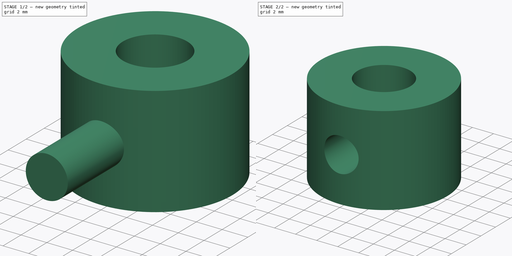
[diagram: build sequence overview — one tinted view per stage of 2, left to right]
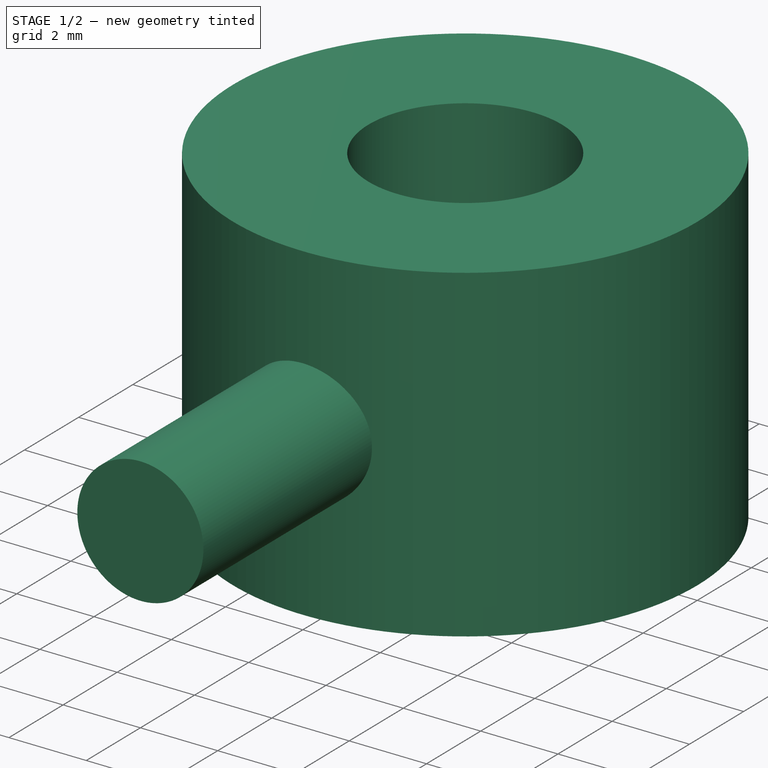
[diagram: stage 1 of 2 — iso view after this stage's code; geometry added in this stage tinted green]
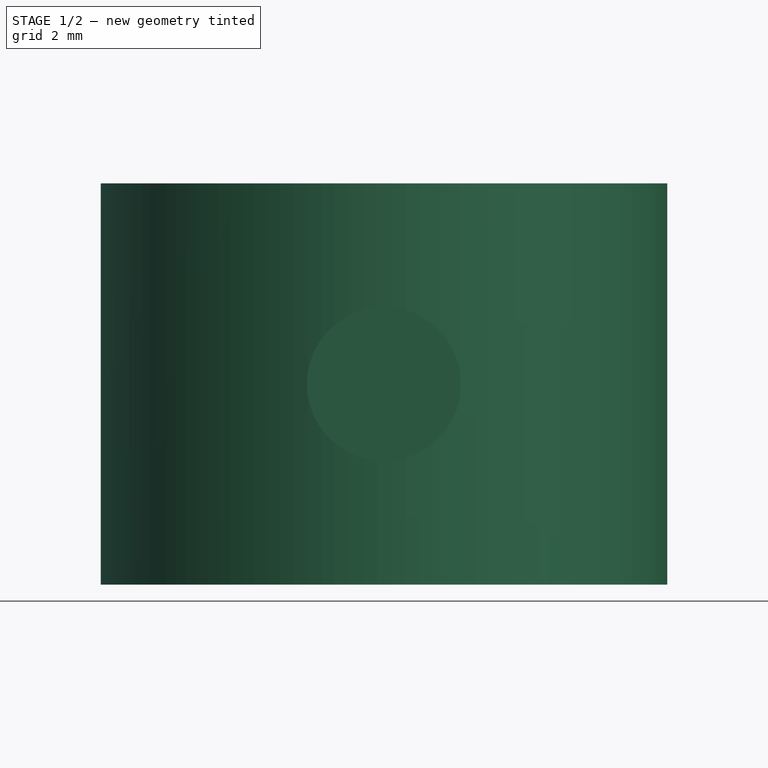
[diagram: stage 1 of 2 — front view after this stage's code; geometry added in this stage tinted green]
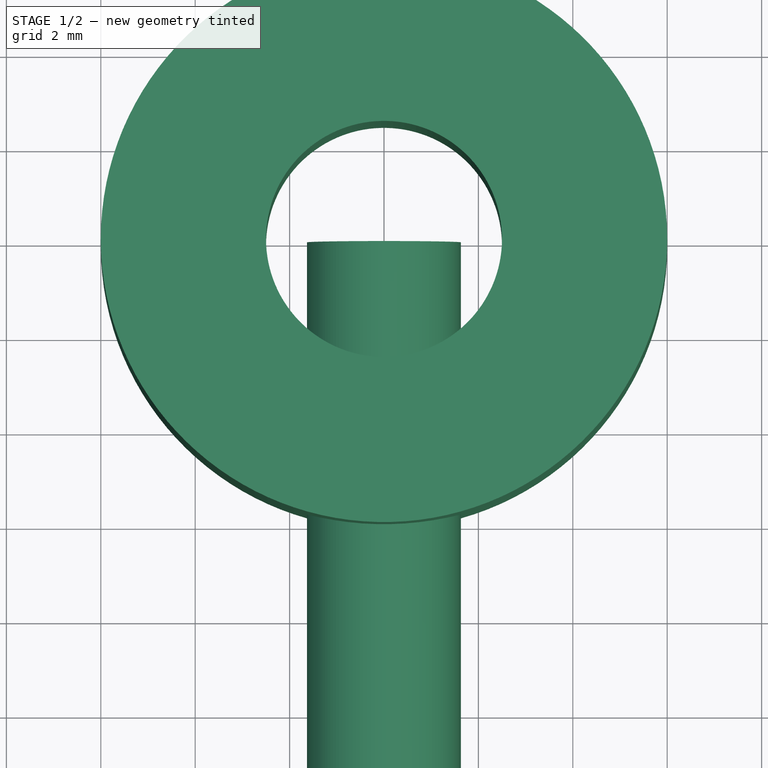
[diagram: stage 1 of 2 — top view after this stage's code; geometry added in this stage tinted green]
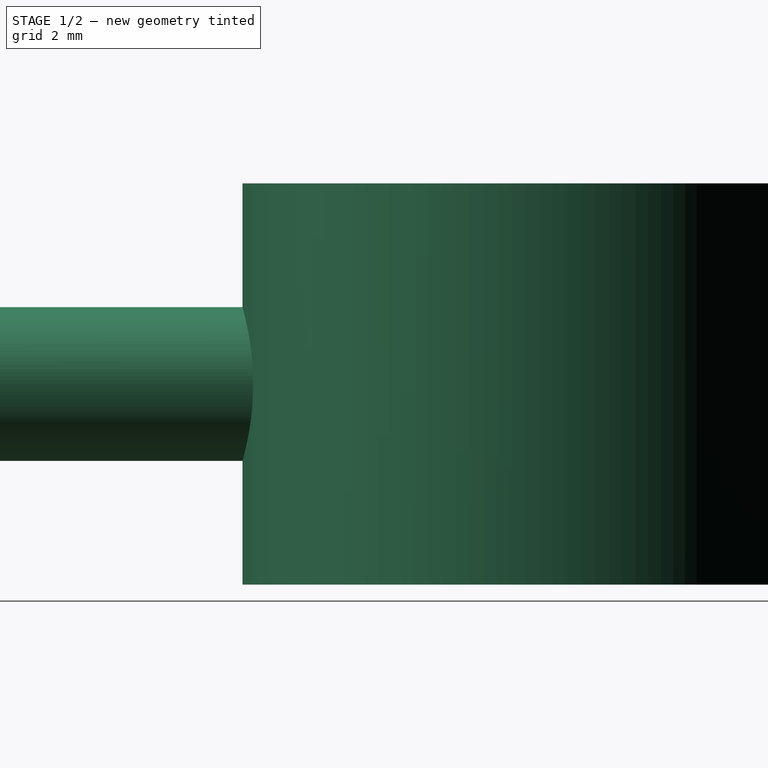
[diagram: stage 1 of 2 — right view after this stage's code; geometry added in this stage tinted green]
FCSTD DOCUMENT  (FreeCAD 0.22R38467 (Git))
Label: Bush
objects: Sketcher::SketchObject×2, Part::Extrusion×2, PartDesign::CoordinateSystem×1, App::VarSet×1, Part::Cut×1, PartDesign::Line×1, App::Part×1
note: 9 computed .brp shape members not serialized (recipe doc carries the construction recipe); baked Part::Feature solids carry a one-line shape summary decoded from their .brp

FEATURE [PartDesign::CoordinateSystem] LCS_Origin
  AttacherType = Attacher::AttachEngine3D
  AttachmentOffset = pos=(0,0,4.25) rot=(0,0,1;0rad)
  AttachmentSupport = -> [X_Axis]
  MapMode = 2
  Placement = pos=(0,0,4.25) rot=(0,0,1;0rad)
  expr: .AttachmentOffset.Base.z = VarSet.Thickness / 2
FEATURE [Sketcher::SketchObject] Sketch  label="Top Profile"
  ArcFitTolerance = 1e-06
  FullyConstrained = true
  MakeInternals = false
  expr: Constraints[2] = VarSet.Base_OD
  expr: Constraints[3] = VarSet.Base_ID
  sketch-geometry (2):
    g0: Circle CenterX=0 CenterY=0 CenterZ=0 NormalX=0 NormalY=0 NormalZ=1 AngleXU=0 Radius=2.5
    g1: Circle CenterX=0 CenterY=0 CenterZ=0 NormalX=0 NormalY=0 NormalZ=1 AngleXU=0 Radius=6
  constraints (4):
    c: Coincident(g0,g-1)
    c: Coincident(g1,g0)
    c: Diameter(g1) = 12
    c: Diameter(g0) = 5
FEATURE [App::VarSet] VarSet
  Base_GrubDia = 3.26
  Base_ID = 5
  Base_OD = 12
  Thickness = 8.5
FEATURE [Part::Extrusion] Extrude  label="Pad"
  Base = -> Sketch
  Dir = (0,0,1)
  DirMode = 2
  FaceMakerClass = Part::FaceMakerBullseye
  FaceMakerMode = 3
  LengthFwd = 8.5
  LengthRev = 0
  Solid = true
  Symmetric = true
  expr: LengthFwd = VarSet.Thickness
FEATURE [Sketcher::SketchObject] Sketch001  label="Grubscrew Profile"
  ArcFitTolerance = 1e-06
  FullyConstrained = true
  MakeInternals = false
  Placement = pos=(0,0,0) rot=(1,0,0;1.5708rad)
  expr: Constraints[1] = VarSet.Base_GrubDia
  sketch-geometry (1):
    g0: Circle CenterX=0 CenterY=0 CenterZ=0 NormalX=0 NormalY=0 NormalZ=1 AngleXU=0 Radius=1.63
  constraints (2):
    c: Coincident(g0,g-1)
    c: Diameter(g0) = 3.26
FEATURE [Part::Extrusion] Extrude001  label="Grubscrew Hole"
  Base = -> Sketch001
  Dir = (0,-1,2e-16)
  DirMode = 2
  FaceMakerClass = Part::FaceMakerBullseye
  FaceMakerMode = 3
  LengthFwd = 12
  LengthRev = 0
  Solid = true
  Symmetric = false
  expr: LengthFwd = VarSet.Base_OD
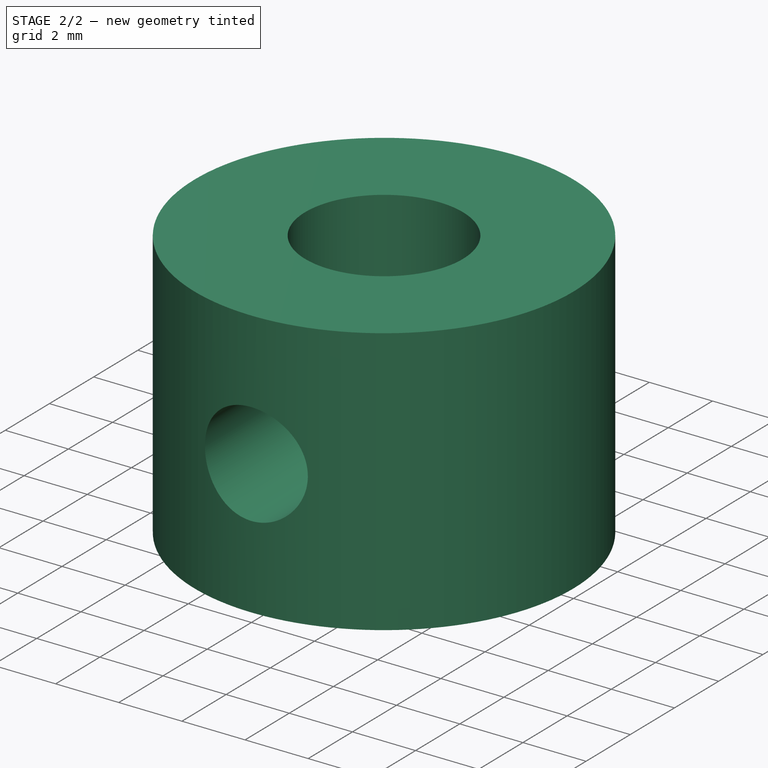
[diagram: stage 2 of 2 — iso view after this stage's code; geometry added in this stage tinted green]
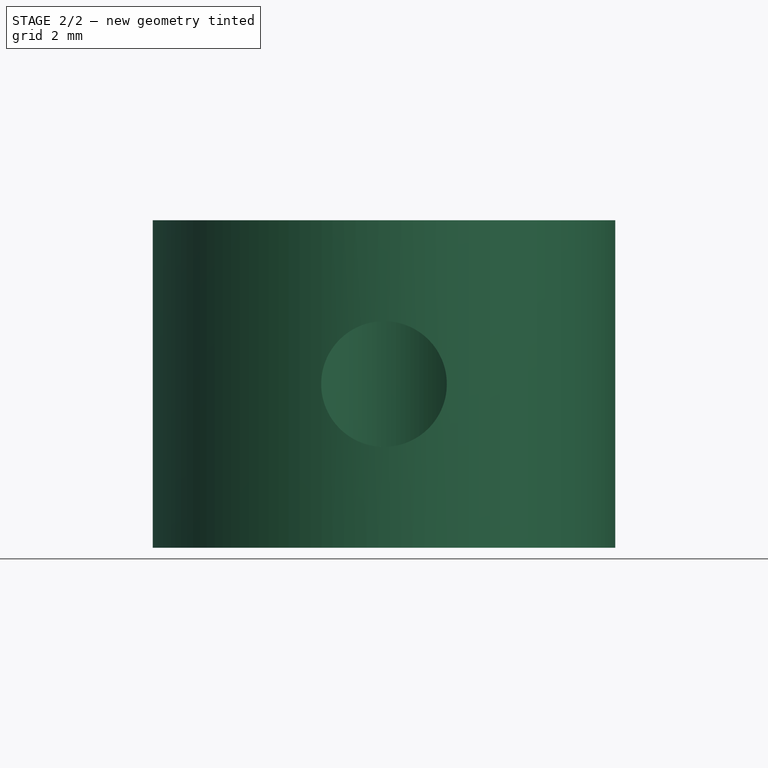
[diagram: stage 2 of 2 — front view after this stage's code; geometry added in this stage tinted green]
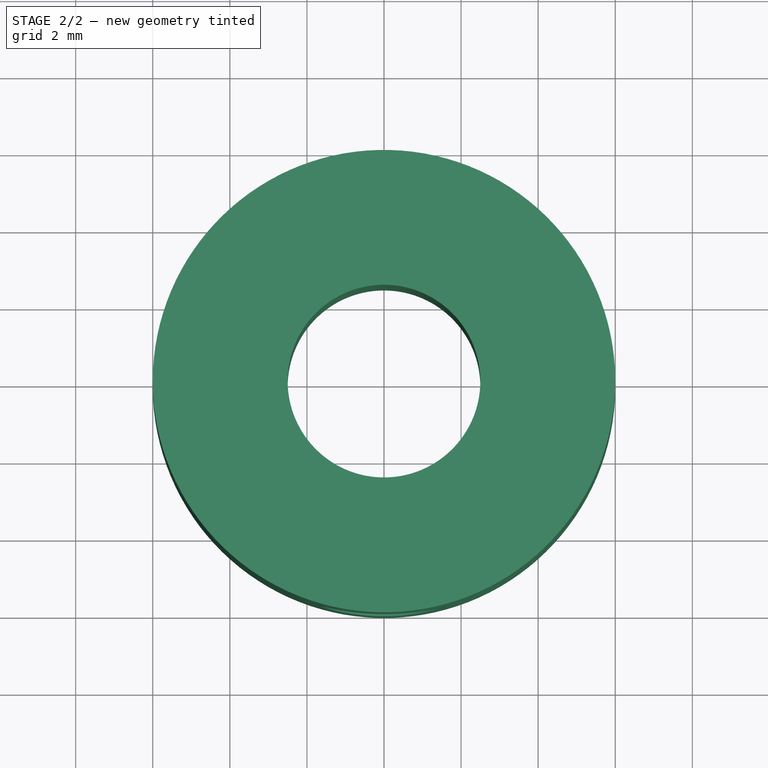
[diagram: stage 2 of 2 — top view after this stage's code; geometry added in this stage tinted green]
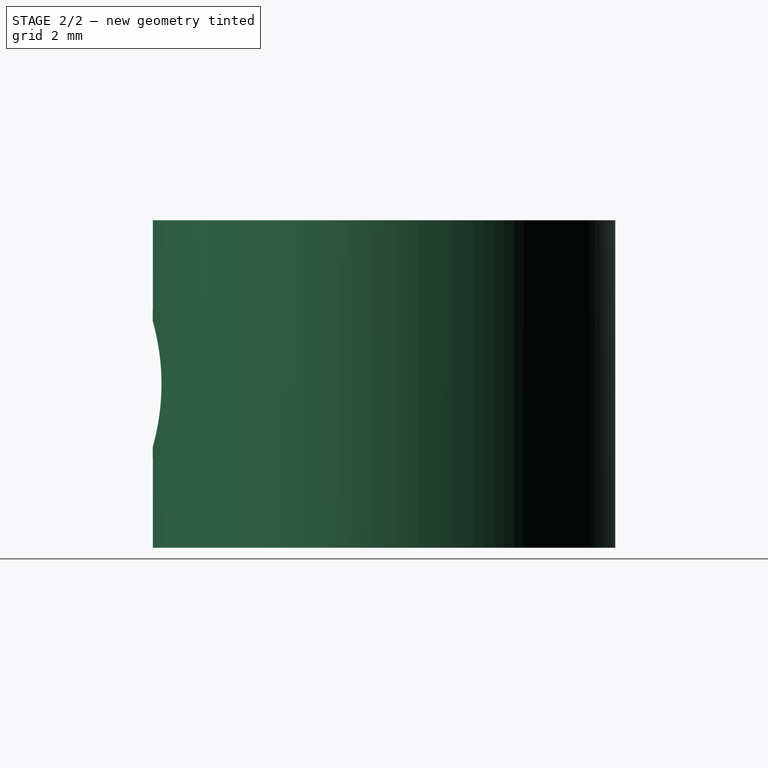
[diagram: stage 2 of 2 — right view after this stage's code; geometry added in this stage tinted green]
FEATURE [Part::Cut] Cut
  Base = -> Extrude
  Tool = -> Extrude001
FEATURE [PartDesign::Line] HoleAxis_1  label="Grubscrew AP"
  AttacherType = Attacher::AttachEngineLine
  AttachmentOffset = pos=(0,0,6) rot=(0,0,1;0rad)
  AttachmentSupport = -> [Sketch001]
  Length = 4.61034
  MapMode = 19
  Placement = pos=(0,-6,-1.3e-15) rot=(1,0,0;1.5708rad)
  ResizeMode = 1
FEATURE [App::Part] Bush
  Group = -> [LCS_Origin,VarSet,Sketch,Extrude,Sketch001,Extrude001,Cut,HoleAxis_1]
  Origin = -> Origin
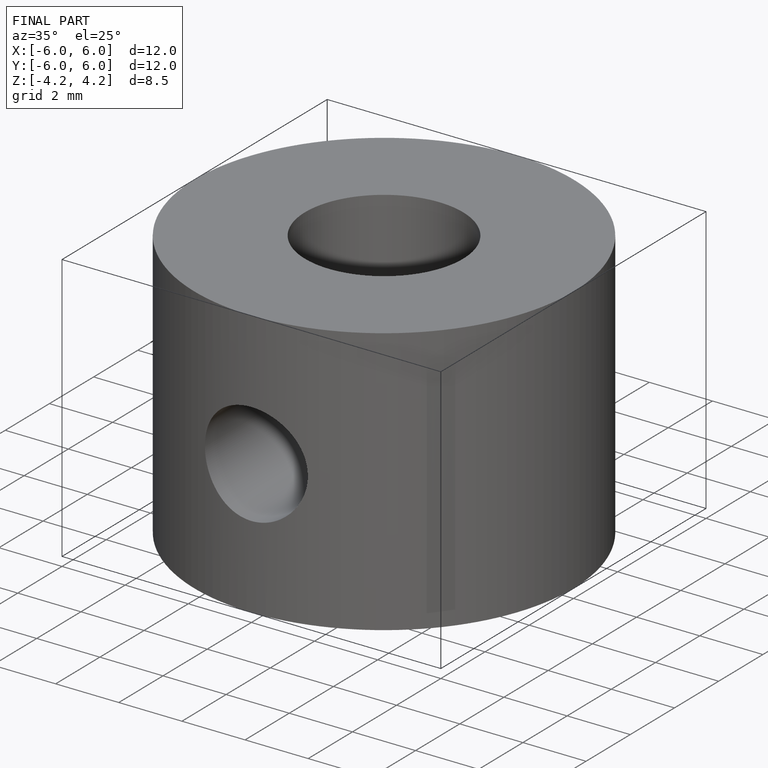
[diagram: finished part — iso view with bounding-box wireframe]
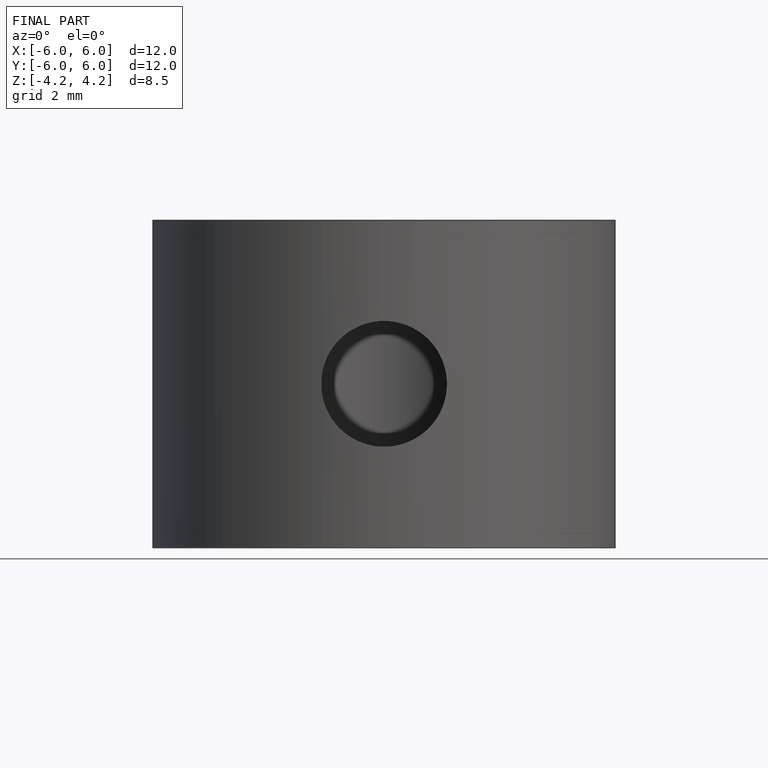
[diagram: finished part — front view with bounding-box wireframe]
